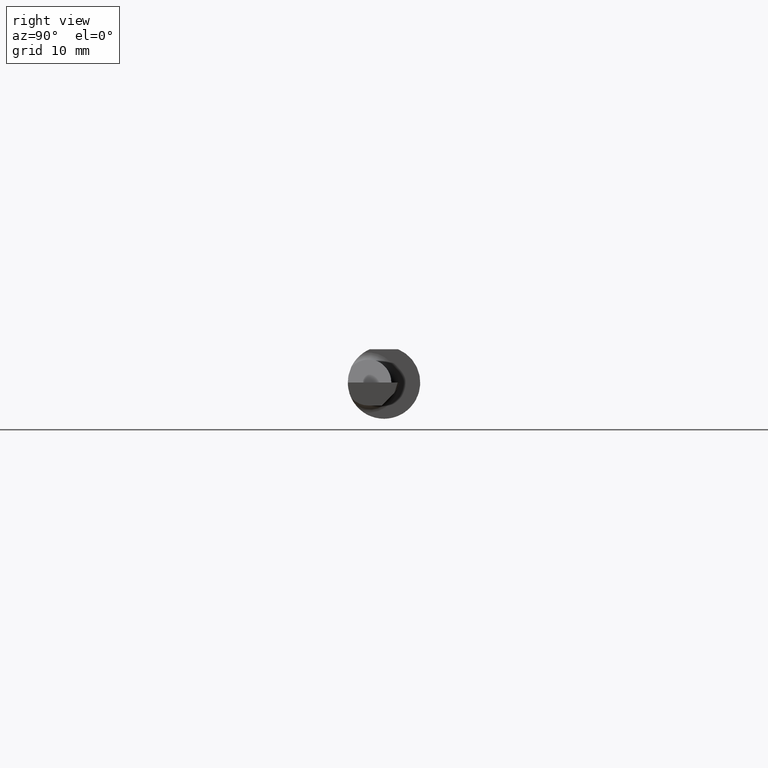
[diagram: clean part render]
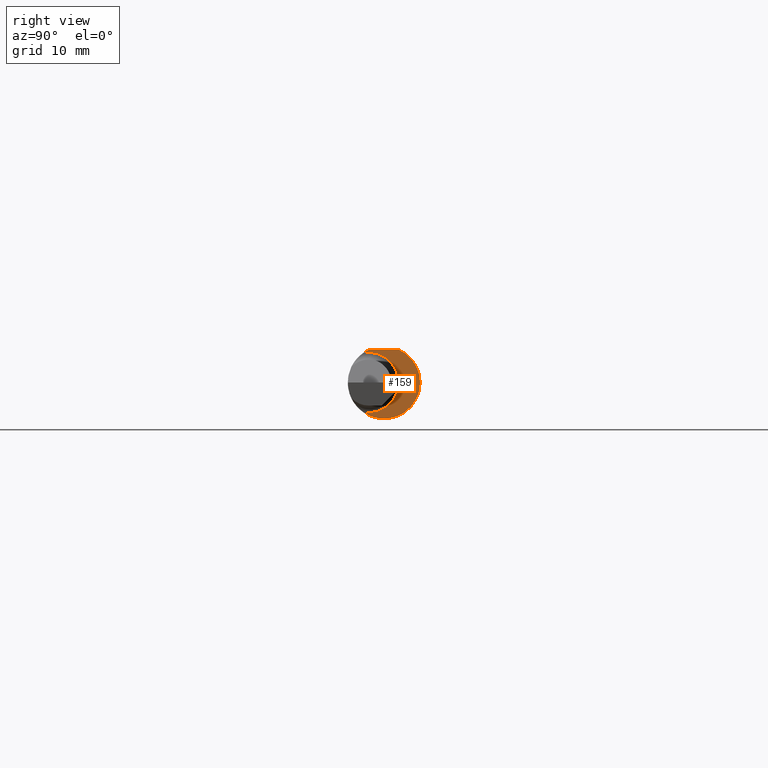
[diagram: same view with one face highlighted and labeled with its STEP entity id]
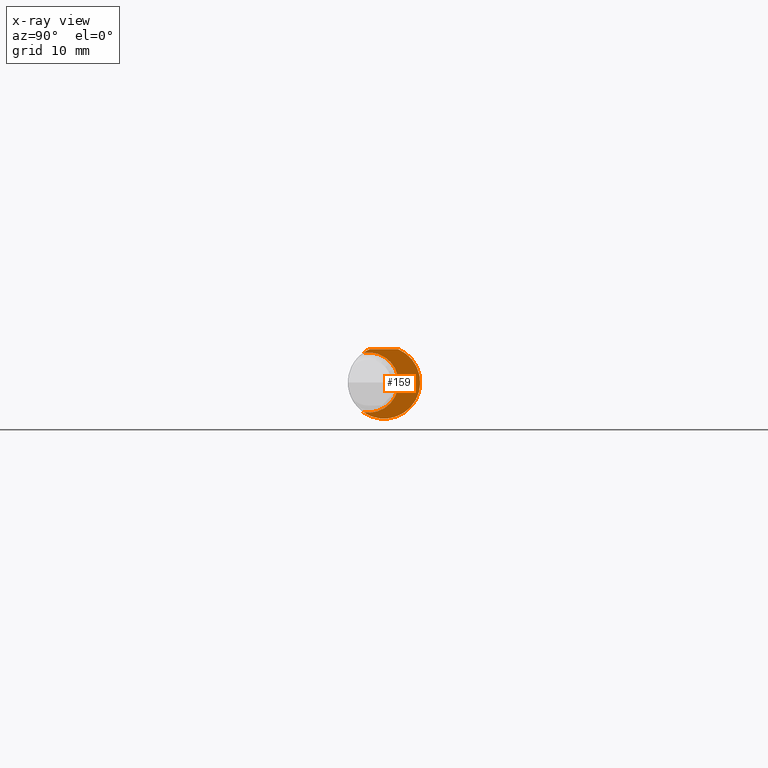
[diagram: x-ray of the same camera — body ghosted, the highlighted face saturated]
A machine part, right view. The second image highlights one B-rep face of the part: STEP entity #159.
The next image is the same camera in x-ray: the body ghosted, the highlighted face saturated — about 0% of this face is hidden behind the body in this view.
In plain terms, the highlighted planar face has unit normal (1, -0, 0).
Its self-contained STEP definition (entity closure, byte-faithful):
#24 = AXIS2_PLACEMENT_3D ( 'NONE', #625, #223, #585 ) ;
#47 = CIRCLE ( 'NONE', #667, 0.1041499999999998677 ) ;
#77 = EDGE_CURVE ( 'NONE', #613, #538, #461, .T. ) ;
#86 = AXIS2_PLACEMENT_3D ( 'NONE', #369, #657, #314 ) ;
#120 = CARTESIAN_POINT ( 'NONE',  ( 1.210000000000000187, 0.1748500000000000054, 0.1148500000000000076 ) ) ;
#142 = EDGE_LOOP ( 'NONE', ( #371, #428, #263, #659 ) ) ;
#153 = CARTESIAN_POINT ( 'NONE',  ( 1.210000000000000187, 0.04895916665957456004, 0.1148500000000000076 ) ) ;
#159 = ADVANCED_FACE ( 'NONE', ( #321 ), #608, .T. ) ;
#192 = DIRECTION ( 'NONE',  ( 3.414809992080329023E-18, 1.000000000000000000, 0.0000000000000000000 ) ) ;
#223 = DIRECTION ( 'NONE',  ( 1.000000000000000000, -3.414809992080329023E-18, 0.0000000000000000000 ) ) ;
#224 = CARTESIAN_POINT ( 'NONE',  ( 1.210000000000000187, -0.04895916665957457392, 0.1148500000000000215 ) ) ;
#240 = VERTEX_POINT ( 'NONE', #224 ) ;
#241 = DIRECTION ( 'NONE',  ( 0.0000000000000000000, -1.000000000000000000, 0.0000000000000000000 ) ) ;
#244 = EDGE_CURVE ( 'NONE', #240, #562, #545, .T. ) ;
#263 = ORIENTED_EDGE ( 'NONE', *, *, #244, .T. ) ;
#308 = AXIS2_PLACEMENT_3D ( 'NONE', #647, #563, #192 ) ;
#314 = DIRECTION ( 'NONE',  ( 0.0000000000000000000, 1.000000000000000000, 0.0000000000000000000 ) ) ;
#318 = EDGE_CURVE ( 'NONE', #538, #240, #411, .T. ) ;
#321 = FACE_OUTER_BOUND ( 'NONE', #142, .T. ) ;
#330 = EDGE_CURVE ( 'NONE', #562, #613, #47, .T. ) ;
#347 = CARTESIAN_POINT ( 'NONE',  ( 1.210000000000000187, -0.05399999999999999245, 0.0000000000000000000 ) ) ;
#351 = DIRECTION ( 'NONE',  ( -1.000000000000000000, 3.414809992080329023E-18, -0.0000000000000000000 ) ) ;
#369 = CARTESIAN_POINT ( 'NONE',  ( 1.210000000000000187, 0.0000000000000000000, 0.0000000000000000000 ) ) ;
#371 = ORIENTED_EDGE ( 'NONE', *, *, #77, .T. ) ;
#411 = LINE ( 'NONE', #120, #541 ) ;
#428 = ORIENTED_EDGE ( 'NONE', *, *, #318, .T. ) ;
#461 = CIRCLE ( 'NONE', #86, 0.1248500000000000026 ) ;
#538 = VERTEX_POINT ( 'NONE', #153 ) ;
#541 = VECTOR ( 'NONE', #552, 39.37007874015748143 ) ;
#545 = CIRCLE ( 'NONE', #24, 0.1248500000000000026 ) ;
#552 = DIRECTION ( 'NONE',  ( -3.414809992080329023E-18, -1.000000000000000000, 4.882484975808304553E-17 ) ) ;
#562 = VERTEX_POINT ( 'NONE', #648 ) ;
#563 = DIRECTION ( 'NONE',  ( 1.000000000000000000, -3.414809992080329023E-18, 0.0000000000000000000 ) ) ;
#585 = DIRECTION ( 'NONE',  ( 0.0000000000000000000, 1.000000000000000000, 0.0000000000000000000 ) ) ;
#602 = CARTESIAN_POINT ( 'NONE',  ( 1.210000000000000187, -0.07089166666666693595, -0.1027710761704001136 ) ) ;
#608 = PLANE ( 'NONE',  #308 ) ;
#613 = VERTEX_POINT ( 'NONE', #602 ) ;
#625 = CARTESIAN_POINT ( 'NONE',  ( 1.210000000000000187, 0.0000000000000000000, 0.0000000000000000000 ) ) ;
#647 = CARTESIAN_POINT ( 'NONE',  ( 1.210000000000000187, 0.05014999999999986829, 0.0000000000000000000 ) ) ;
#648 = CARTESIAN_POINT ( 'NONE',  ( 1.210000000000000187, -0.07089166666666693595, 0.1027710761704001136 ) ) ;
#657 = DIRECTION ( 'NONE',  ( 1.000000000000000000, -3.414809992080329023E-18, 0.0000000000000000000 ) ) ;
#659 = ORIENTED_EDGE ( 'NONE', *, *, #330, .T. ) ;
#667 = AXIS2_PLACEMENT_3D ( 'NONE', #347, #351, #241 ) ;